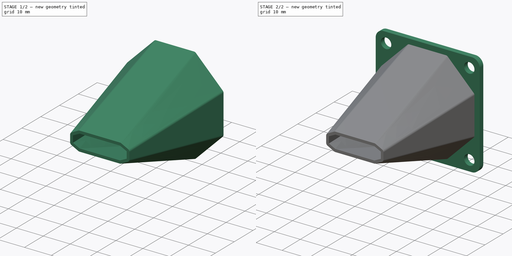
[diagram: build sequence overview — one tinted view per stage of 2, left to right]
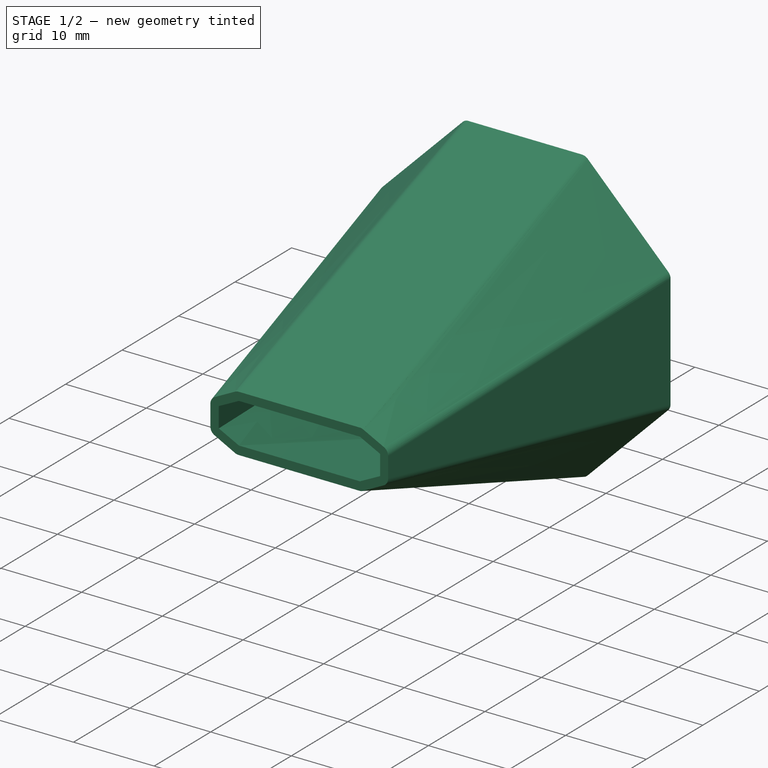
[diagram: stage 1 of 2 — iso view after this stage's code; geometry added in this stage tinted green]
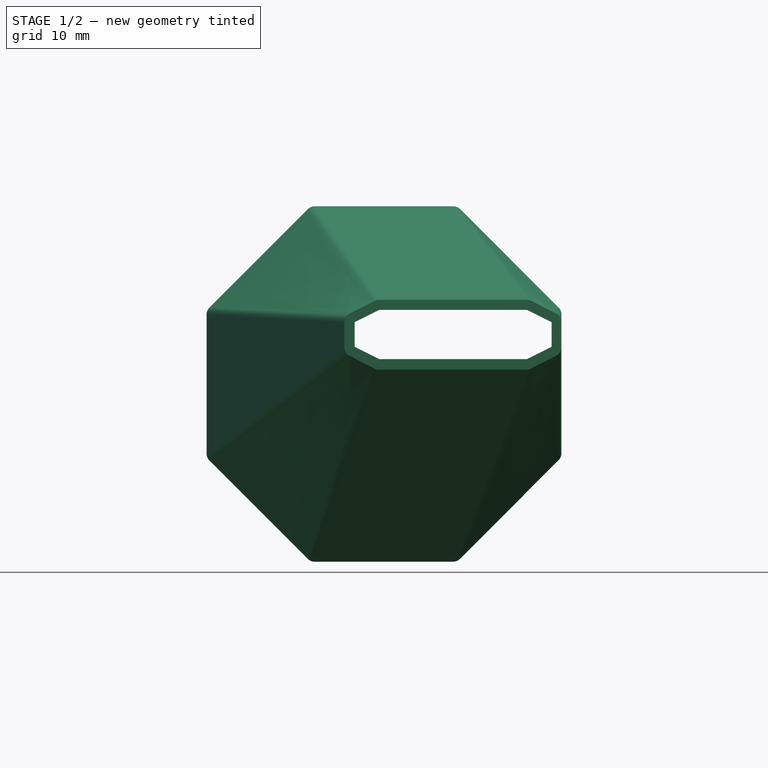
[diagram: stage 1 of 2 — front view after this stage's code; geometry added in this stage tinted green]
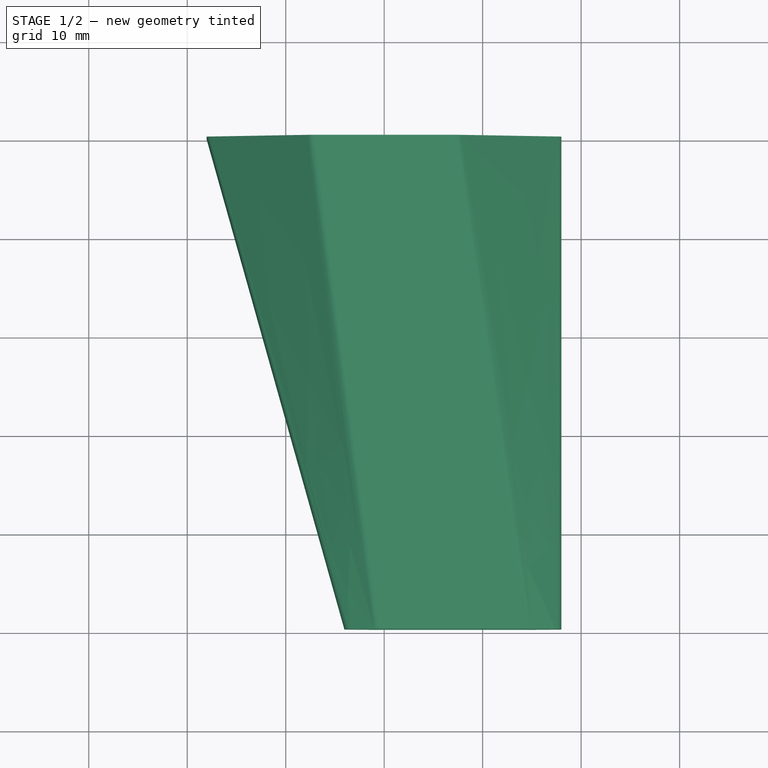
[diagram: stage 1 of 2 — top view after this stage's code; geometry added in this stage tinted green]
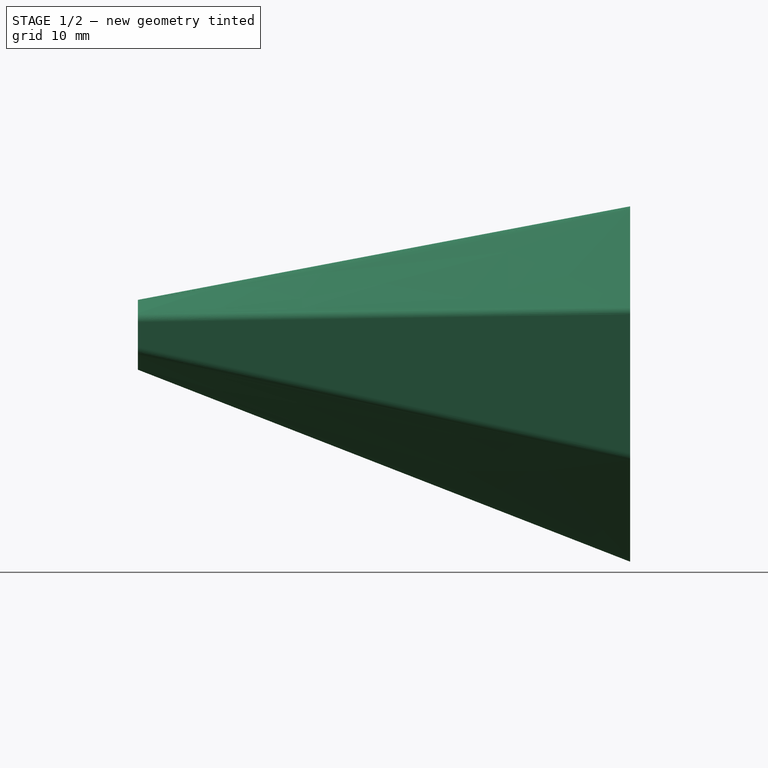
[diagram: stage 1 of 2 — right view after this stage's code; geometry added in this stage tinted green]
FCSTD DOCUMENT  (FreeCAD 0.18R14555 (Git shallow))
Label: fan-duct
License: All rights reserved
LicenseURL: http://en.wikipedia.org/wiki/All_rights_reserved
objects: Sketcher::SketchObject×3, PartDesign::AdditiveLoft×1, PartDesign::Thickness×1, PartDesign::Pad×1, PartDesign::Fillet×1, PartDesign::Body×1
note: 10 computed .brp shape members not serialized (recipe doc carries the construction recipe); baked Part::Feature solids carry a one-line shape summary decoded from their .brp

FEATURE [Sketcher::SketchObject] Sketch
  MapMode = 5
  Placement = pos=(0,0,0) rot=(1,0,0;1.5708rad)
  Support = -> [XZ_Plane]
  sketch-geometry (15):
    g0: LineSegment StartX=7.04163 StartY=17 StartZ=0 EndX=-7.04163 EndY=17 EndZ=0
    g1: LineSegment StartX=-7.04163 StartY=17 StartZ=0 EndX=-17 EndY=7.04163 EndZ=0
    g2: LineSegment StartX=-17 StartY=7.04163 StartZ=0 EndX=-17 EndY=-7.04163 EndZ=0
    g3: LineSegment StartX=-17 StartY=-7.04163 StartZ=0 EndX=-7.04163 EndY=-17 EndZ=0
    g4: LineSegment StartX=-7.04163 StartY=-17 StartZ=0 EndX=7.04163 EndY=-17 EndZ=0
    g5: LineSegment StartX=7.04163 StartY=-17 StartZ=0 EndX=17 EndY=-7.04163 EndZ=0
    g6: LineSegment StartX=17 StartY=-7.04163 StartZ=0 EndX=17 EndY=7.04163 EndZ=0
    g7: LineSegment StartX=17 StartY=7.04163 StartZ=0 EndX=7.04163 EndY=17 EndZ=0
    g8: Circle [constr] CenterX=0 CenterY=0 CenterZ=0 NormalX=0 NormalY=0 NormalZ=1 AngleXU=0 Radius=18.4007
    g9: LineSegment [constr] StartX=-20 StartY=20 StartZ=0 EndX=20 EndY=20 EndZ=0
    g10: LineSegment [constr] StartX=20 StartY=20 StartZ=0 EndX=20 EndY=-20 EndZ=0
    g11: LineSegment [constr] StartX=20 StartY=-20 StartZ=0 EndX=-20 EndY=-20 EndZ=0
    g12: LineSegment [constr] StartX=-20 StartY=-20 StartZ=0 EndX=-20 EndY=20 EndZ=0
    g13: LineSegment [constr] StartX=-20 StartY=20 StartZ=0 EndX=20 EndY=-20 EndZ=0
    g14: LineSegment [constr] StartX=-20 StartY=-20 StartZ=0 EndX=20 EndY=20 EndZ=0
  constraints (36):
    c: Coincident(g0,g1)
    c: Coincident(g1,g2)
    c: Coincident(g2,g3)
    c: Coincident(g3,g4)
    c: Coincident(g4,g5)
    c: Coincident(g5,g6)
    c: Coincident(g6,g7)
    c: Coincident(g7,g0)
    c: Equal(g0, g1-g7) x7
    c: PointOnObject(g0,g8)
    c: PointOnObject(g1,g8)
    c: PointOnObject(g2,g8)
    c: PointOnObject(g3,g8)
    c: PointOnObject(g4,g8)
    c: PointOnObject(g5,g8)
    c: PointOnObject(g6,g8)
    c: PointOnObject(g7,g8)
    c: Coincident(g8,g-1)
    c: Vertical(g6)
    c: Coincident(g9,g10)
    c: Coincident(g10,g11)
    c: Coincident(g11,g12)
    c: Coincident(g12,g9)
    c: Horizontal(g9)
    c: Horizontal(g11)
    c: Vertical(g10)
    c: Vertical(g12)
    c: Coincident(g13,g9)
    c: Coincident(g13,g10)
    c: Coincident(g14,g9)
    c: PointOnObject(g-1,g14)
    c: PointOnObject(g-1,g13)
    c: Equal(g12,g9)
    c: Coincident(g14,g11)
    c: DistanceX(g9,g9) = 40
    c: DistanceY(g0,g9) = 3
FEATURE [Sketcher::SketchObject] Sketch001
  AttachmentOffset = pos=(0,0,50) rot=(0,0,1;0rad)
  MapMode = 5
  Placement = pos=(0,-50,-1.11e-14) rot=(1,0,0;1.5708rad)
  Support = -> [XZ_Plane]
  sketch-geometry (15):
    g0: LineSegment StartX=-0.5 StartY=7.5 StartZ=0 EndX=14.5 EndY=7.5 EndZ=0
    g1: LineSegment StartX=14.5 StartY=7.5 StartZ=0 EndX=17 EndY=6.25 EndZ=0
    g2: LineSegment StartX=17 StartY=6.25 StartZ=0 EndX=17 EndY=3.75 EndZ=0
    g3: LineSegment StartX=17 StartY=3.75 StartZ=0 EndX=14.5 EndY=2.5 EndZ=0
    g4: LineSegment StartX=14.5 StartY=2.5 StartZ=0 EndX=-0.5 EndY=2.5 EndZ=0
    g5: LineSegment StartX=-0.5 StartY=2.5 StartZ=0 EndX=-3 EndY=3.75 EndZ=0
    g6: LineSegment StartX=-3 StartY=3.75 StartZ=0 EndX=-3 EndY=6.25 EndZ=0
    g7: LineSegment StartX=-3 StartY=6.25 StartZ=0 EndX=-0.5 EndY=7.5 EndZ=0
    g8: LineSegment [constr] StartX=-0.5 StartY=7.5 StartZ=0 EndX=-0.5 EndY=2.5 EndZ=0
    g9: LineSegment [constr] StartX=-3 StartY=3.75 StartZ=0 EndX=17 EndY=3.75 EndZ=0
    g10: LineSegment [constr] StartX=14.5 StartY=2.5 StartZ=0 EndX=14.5 EndY=7.5 EndZ=0
    g11: LineSegment [constr] StartX=-3 StartY=6.25 StartZ=0 EndX=17 EndY=6.25 EndZ=0
    g12: LineSegment [constr] StartX=-0.5 StartY=7.5 StartZ=0 EndX=14.5 EndY=2.5 EndZ=0
    g13: LineSegment [constr] StartX=-0.5 StartY=2.5 StartZ=0 EndX=14.5 EndY=7.5 EndZ=0
    g14: GeomPoint X=7 Y=5 Z=0
  constraints (38):
    c: Horizontal(g0)
    c: Coincident(g0,g1)
    c: Coincident(g1,g2)
    c: Vertical(g2)
    c: Coincident(g2,g3)
    c: Coincident(g3,g4)
    c: Horizontal(g4)
    c: Coincident(g4,g5)
    c: Coincident(g5,g6)
    c: Vertical(g6)
    c: Coincident(g6,g7)
    c: Coincident(g7,g0)
    c: Coincident(g8,g0)
    c: Coincident(g8,g4)
    c: Vertical(g8)
    c: Coincident(g9,g5)
    c: Coincident(g9,g2)
    c: Coincident(g10,g3)
    c: Coincident(g10,g0)
    c: Vertical(g10)
    c: Coincident(g11,g6)
    c: Coincident(g11,g1)
    c: Horizontal(g11)
    c: Coincident(g12,g0)
    c: Coincident(g12,g3)
    c: Coincident(g13,g4)
    c: Coincident(g13,g0)
    c: Equal(g7,g5)
    c: Equal(g3,g1)
    c: Equal(g7,g1)
    c: DistanceX(g6,g1) = 20
    c: DistanceX(g0,g0) = 15
    c: DistanceY(g5,g6) = 2.5
    c: DistanceY(g4,g0) = 5
    c: PointOnObject(g14,g12)
    c: PointOnObject(g14,g13)
    c: DistanceX(g-1,g14) = 7
    c: DistanceY(g-1,g14) = 5
FEATURE [PartDesign::AdditiveLoft] AdditiveLoft
  Closed = true
  Placement = pos=(0,0,0) rot=(1,0,0;1.5708rad)
  Profile = -> Sketch
  Ruled = true
  Sections = -> [Sketch001]
FEATURE [PartDesign::Thickness] Thickness
  Base = -> AdditiveLoft [Face3,Face1]
  BaseFeature = -> AdditiveLoft
  Join = 0
  Mode = 0
  Value = 1
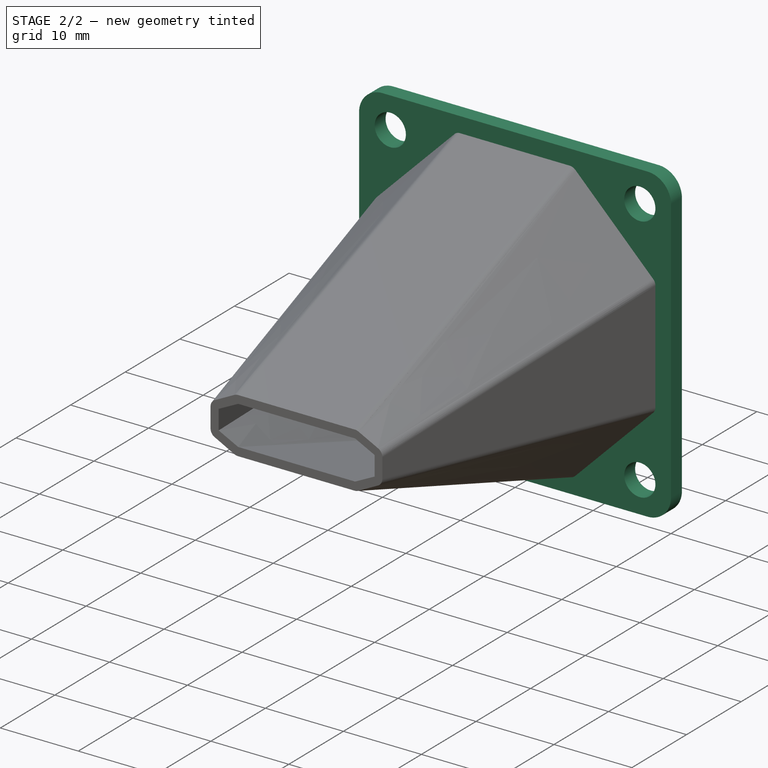
[diagram: stage 2 of 2 — iso view after this stage's code; geometry added in this stage tinted green]
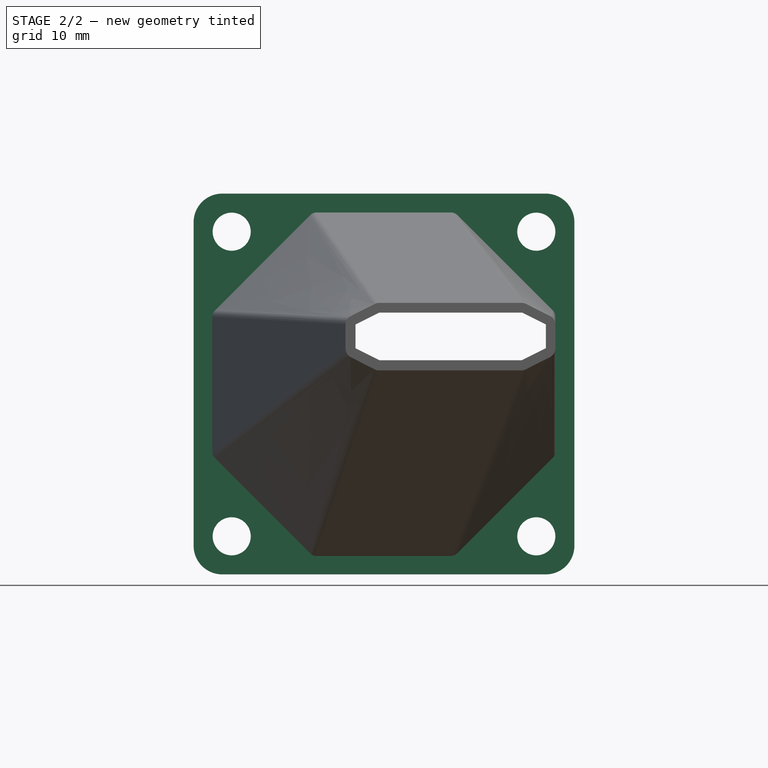
[diagram: stage 2 of 2 — front view after this stage's code; geometry added in this stage tinted green]
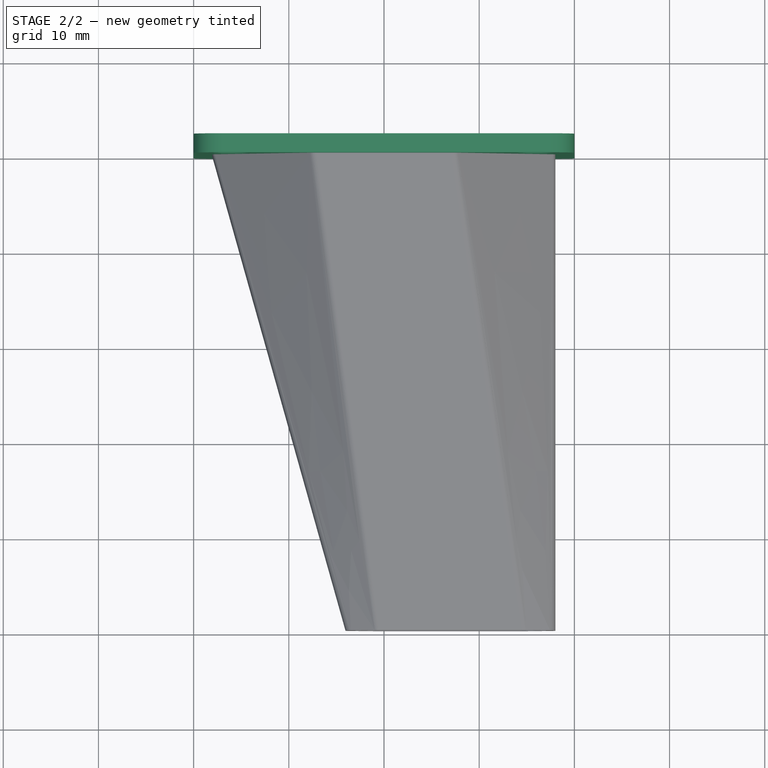
[diagram: stage 2 of 2 — top view after this stage's code; geometry added in this stage tinted green]
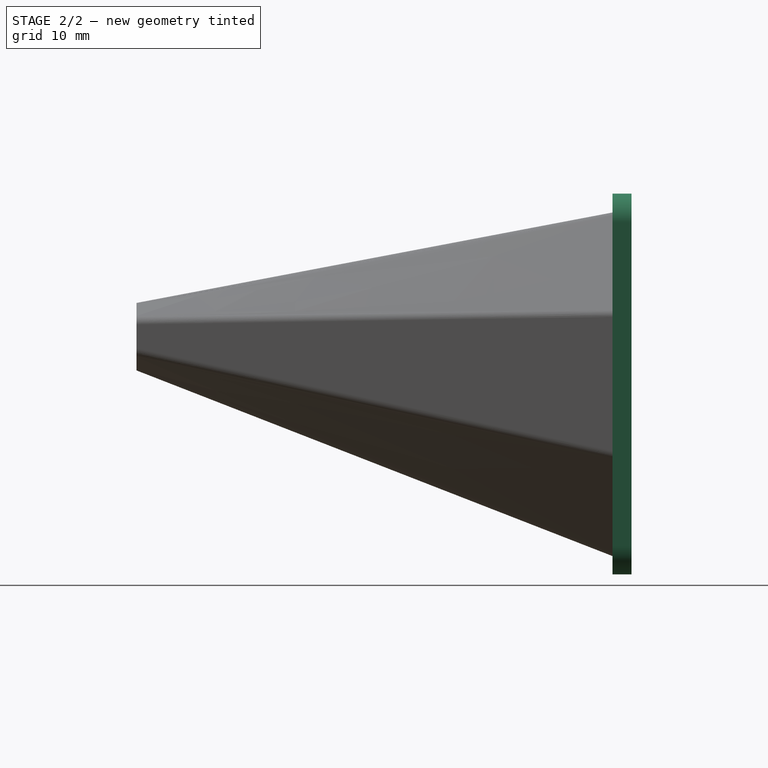
[diagram: stage 2 of 2 — right view after this stage's code; geometry added in this stage tinted green]
FEATURE [Sketcher::SketchObject] Sketch002
  ExternalGeometry = -> [Thickness]
  MapMode = 5
  Placement = pos=(0,0,0) rot=(0,0.707107,0.707107;3.14159rad)
  Support = -> [Thickness]
  sketch-geometry (24):
    g0: LineSegment StartX=-20 StartY=-20 StartZ=0 EndX=20 EndY=-20 EndZ=0
    g1: LineSegment StartX=20 StartY=-20 StartZ=0 EndX=20 EndY=20 EndZ=0
    g2: LineSegment StartX=20 StartY=20 StartZ=0 EndX=-20 EndY=20 EndZ=0
    g3: LineSegment StartX=-20 StartY=20 StartZ=0 EndX=-20 EndY=-20 EndZ=0
    g4: LineSegment StartX=-7.04163 StartY=17 StartZ=0 EndX=-17 EndY=7.04163 EndZ=0
    g5: LineSegment StartX=-17 StartY=7.04163 StartZ=0 EndX=-17 EndY=-7.04163 EndZ=0
    g6: LineSegment StartX=-17 StartY=-7.04163 StartZ=0 EndX=-7.04163 EndY=-17 EndZ=0
    g7: LineSegment StartX=-7.04163 StartY=-17 StartZ=0 EndX=7.04163 EndY=-17 EndZ=0
    g8: LineSegment StartX=7.04163 StartY=-17 StartZ=0 EndX=17 EndY=-7.04163 EndZ=0
    g9: LineSegment StartX=17 StartY=-7.04163 StartZ=0 EndX=17 EndY=7.04163 EndZ=0
    g10: LineSegment StartX=17 StartY=7.04163 StartZ=0 EndX=7.04163 EndY=17 EndZ=0
    g11: LineSegment StartX=7.04163 StartY=17 StartZ=0 EndX=-7.04163 EndY=17 EndZ=0
    g12: Circle [constr] CenterX=0 CenterY=0 CenterZ=0 NormalX=0 NormalY=0 NormalZ=1 AngleXU=0 Radius=18.4007
    g13: Circle CenterX=-16 CenterY=16 CenterZ=0 NormalX=0 NormalY=0 NormalZ=1 AngleXU=0 Radius=2
    g14: Circle CenterX=16 CenterY=16 CenterZ=0 NormalX=0 NormalY=0 NormalZ=1 AngleXU=0 Radius=2
    g15: Circle CenterX=16 CenterY=-16 CenterZ=0 NormalX=0 NormalY=0 NormalZ=1 AngleXU=0 Radius=2
    g16: Circle CenterX=-16 CenterY=-16 CenterZ=0 NormalX=0 NormalY=0 NormalZ=1 AngleXU=0 Radius=2
    g17: LineSegment [constr] StartX=-16 StartY=16 StartZ=0 EndX=-16 EndY=-16 EndZ=0
    g18: LineSegment [constr] StartX=-16 StartY=-16 StartZ=0 EndX=16 EndY=-16 EndZ=0
    g19: LineSegment [constr] StartX=16 StartY=-16 StartZ=0 EndX=16 EndY=16 EndZ=0
    g20: LineSegment [constr] StartX=16 StartY=16 StartZ=0 EndX=-16 EndY=16 EndZ=0
    g21: LineSegment [constr] StartX=-16 StartY=16 StartZ=0 EndX=-20 EndY=20 EndZ=0
    g22: LineSegment [constr] StartX=-16 StartY=-16 StartZ=0 EndX=-20 EndY=-20 EndZ=0
    g23: LineSegment [constr] StartX=16 StartY=-16 StartZ=0 EndX=20 EndY=-20 EndZ=0
  constraints (57):
    c: Coincident(g0,g1)
    c: Coincident(g1,g2)
    c: Coincident(g2,g3)
    c: Coincident(g3,g0)
    c: Horizontal(g0)
    c: Horizontal(g2)
    c: Vertical(g1)
    c: Vertical(g3)
    c: Equal(g3,g2)
    c: DistanceX(g2,g2) = 40
    c: DistanceX(g2,g-4) = 3
    c: DistanceY(g-3,g2) = 3
    c: Coincident(g4,g5)
    c: Coincident(g5,g6)
    c: Coincident(g6,g7)
    c: Coincident(g7,g8)
    c: Coincident(g8,g9)
    c: Coincident(g9,g10)
    c: Coincident(g10,g11)
    c: Coincident(g11,g4)
    c: Equal(g4, g5-g11) x7
    c: PointOnObject(g4,g12)
    c: PointOnObject(g5,g12)
    c: PointOnObject(g6,g12)
    c: PointOnObject(g7,g12)
    c: PointOnObject(g8,g12)
    c: PointOnObject(g9,g12)
    c: PointOnObject(g10,g12)
    c: PointOnObject(g11,g12)
    c: Coincident(g12,g-1)
    c: Coincident(g11,g-3)
    c: Coincident(g17,g13)
    c: Coincident(g17,g16)
    c: Vertical(g17)
    c: Coincident(g18,g16)
    c: Coincident(g18,g15)
    c: Horizontal(g18)
    c: Coincident(g19,g15)
    c: Coincident(g19,g14)
    c: Coincident(g20,g14)
    c: Coincident(g20,g13)
    c: Horizontal(g20)
    c: Vertical(g19)
    c: Coincident(g21,g13)
    c: Coincident(g21,g2)
    c: Coincident(g22,g16)
    c: Coincident(g22,g0)
    c: Coincident(g23,g15)
    c: Coincident(g23,g0)
    c: Equal(g21,g22)
    c: Equal(g22,g23)
    c: Equal(g17,g20)
    c: DistanceX(g2,g13) = 4
    c: Equal(g13,g14)
    c: Equal(g14,g15)
    c: Equal(g15,g16)
    c: Radius(g13) = 2
FEATURE [PartDesign::Pad] Pad
  BaseFeature = -> Thickness
  Length = 2
  Length2 = 100
  Profile = -> Sketch002
  Type = 0
FEATURE [PartDesign::Fillet] Fillet
  Base = -> Pad [Edge100,Edge95,Edge98,Edge96]
  BaseFeature = -> Pad
  Radius = 3
FEATURE [PartDesign::Body] Body  label="fan-duct"
  Group = -> [Sketch,Sketch001,AdditiveLoft,Thickness,Sketch002,Pad,Fillet]
  Origin = -> Origin
  Tip = -> Fillet
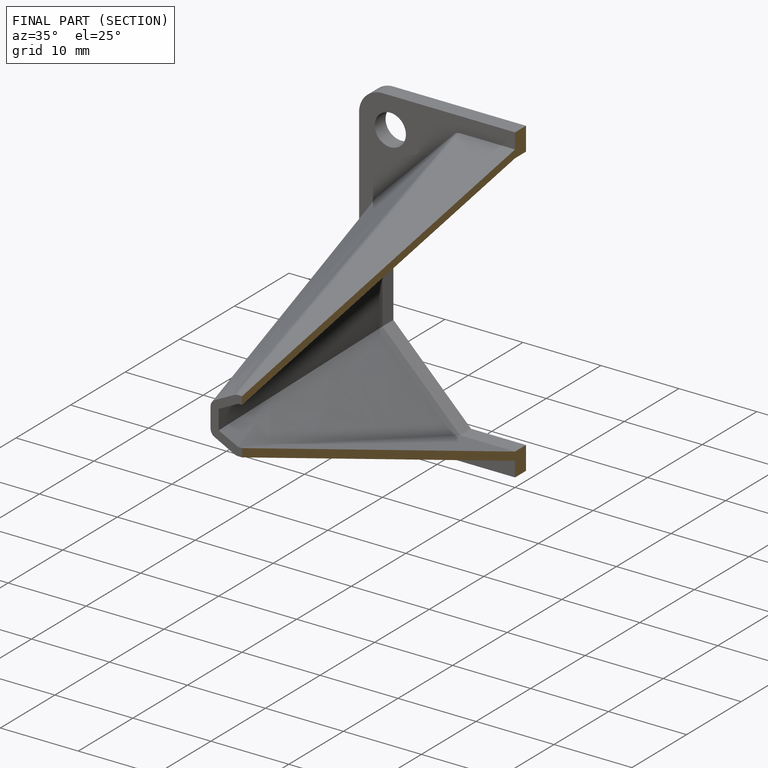
[diagram: finished part — half-section view (interior)]
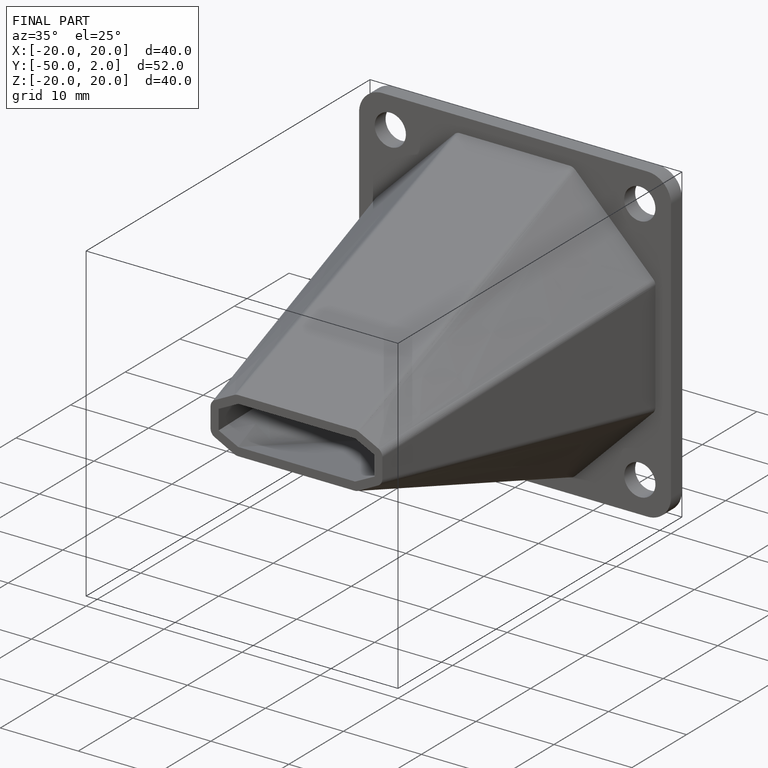
[diagram: finished part — iso view with bounding-box wireframe]
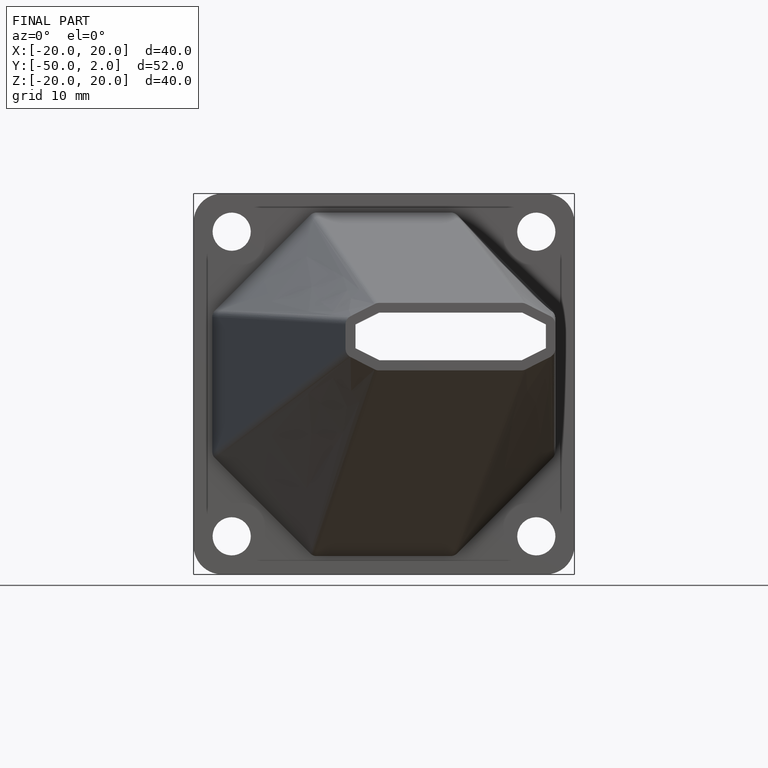
[diagram: finished part — front view with bounding-box wireframe]
